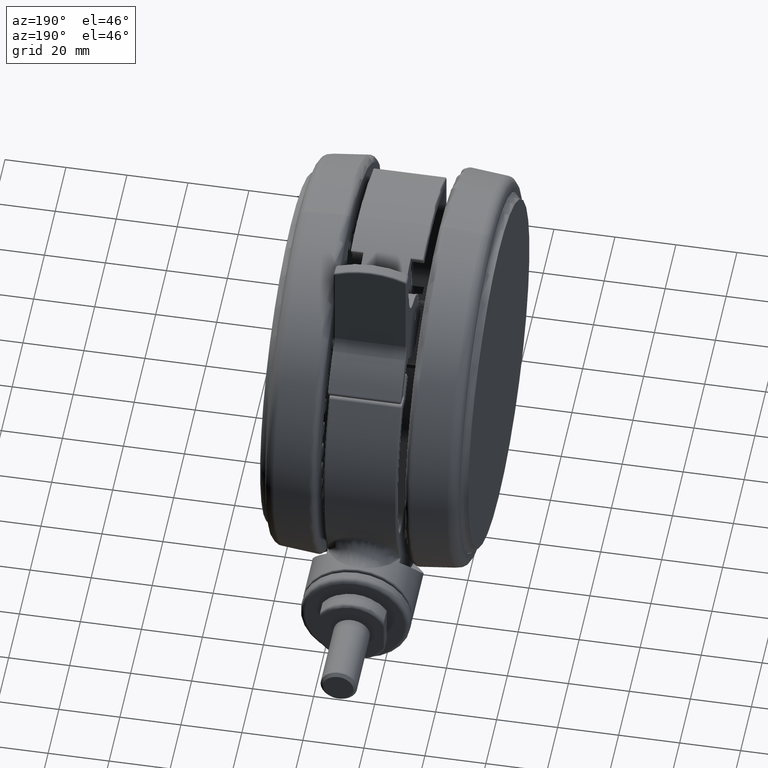
[diagram: clean part render]
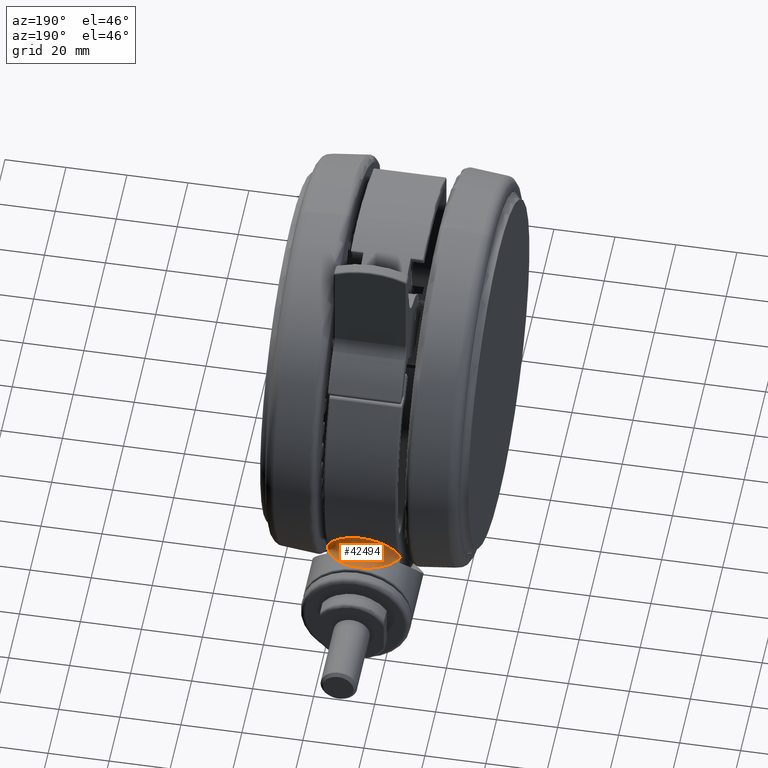
[diagram: same view with one face highlighted and labeled with its STEP entity id]
A machine part, auxiliary view. The second image highlights one B-rep face of the part: STEP entity #42494.
In plain terms, the highlighted face is a freeform B-spline surface patch.
Its self-contained STEP definition (entity closure, byte-faithful):
#152 = CARTESIAN_POINT ( 'NONE',  ( 28.37484902183078400, 58.67650871430763000, -41.08207356453573300 ) ) ;
#416 = CARTESIAN_POINT ( 'NONE',  ( 30.35290244265105000, 60.31074405743910200, -23.62693915276290500 ) ) ;
#709 = CARTESIAN_POINT ( 'NONE',  ( 27.03576459800769900, 67.74512608529970200, -32.79242233756730900 ) ) ;
#974 = CARTESIAN_POINT ( 'NONE',  ( 29.02308622630414800, 63.46725957536909800, -42.40795725200245400 ) ) ;
#1524 = EDGE_CURVE ( 'NONE', #57260, #76518, #49382, .T. ) ;
#1551 = ORIENTED_EDGE ( 'NONE', *, *, #48837, .F. ) ;
#2010 = B_SPLINE_CURVE_WITH_KNOTS ( 'NONE', 3,
 ( #28318, #34674, #41000, #3334, #47311, #9643, #53572, #15946, #59862, #22297, #66176, #28585, #72493, #34945, #78853, #41283, #3603, #47593, #9907, #53843, #16221, #60136, #22560, #66446, #28861, #72760, #35215, #79120, #41552, #3878 ),
 .UNSPECIFIED., .F., .F.,
 ( 4, 2, 2, 2, 2, 2, 2, 2, 2, 2, 2, 2, 2, 2, 4 ),
 ( -6.000000000594909100E-008, 0.0002769874312782856800, 0.0003462492890978491500, 0.0003808802180076152700, 0.0004155111469173813400, 0.0004241688791448154800, 0.0004328266113722496300, 0.0004501420758271282100, 0.0004847730047368786700, 0.0005540348625563733500, 0.0008310822938343904400, 0.001108129725112407600, 0.002216319450224488300, 0.003324509175336568800, 0.004432698900448650200 ),
 .UNSPECIFIED. ) ;
#3334 = CARTESIAN_POINT ( 'NONE',  ( 31.50526437049028100, 57.00313279052390700, -46.01676130109519400 ) ) ;
#3517 = CARTESIAN_POINT ( 'NONE',  ( 27.95437384687145200, 58.68178101843090400, -45.60001317750182900 ) ) ;
#3603 = CARTESIAN_POINT ( 'NONE',  ( 31.49106850129294300, 56.91912667314627300, -46.04103568428323000 ) ) ;
#3651 = CARTESIAN_POINT ( 'NONE',  ( 30.20954573881164900, 60.65250968105694100, -44.35936644053713000 ) ) ;
#3878 = CARTESIAN_POINT ( 'NONE',  ( 27.95437384687145200, 58.68178101843090400, -45.60001317750182900 ) ) ;
#3914 = CARTESIAN_POINT ( 'NONE',  ( 28.03396110006650600, 65.63342581418625300, -40.14199277852586800 ) ) ;
#4080 = CARTESIAN_POINT ( 'NONE',  ( 31.34985742047772600, 57.01552274683228900, -22.20864808847526800 ) ) ;
#4344 = CARTESIAN_POINT ( 'NONE',  ( 31.52401008762953400, 56.93889926856555000, -22.15932818830466600 ) ) ;
#4736 = CARTESIAN_POINT ( 'NONE',  ( 27.79232637209798500, 58.75890123488316200, -22.63798909152732700 ) ) ;
#4951 = CARTESIAN_POINT ( 'NONE',  ( 27.01018319708686000, 67.80143269593934000, -33.47461518382359500 ) ) ;
#4983 = CARTESIAN_POINT ( 'NONE',  ( 24.38946645385690500, 60.25139982984629200, -24.26384737465338800 ) ) ;
#5127 = CARTESIAN_POINT ( 'NONE',  ( 28.04856699668369700, 58.64207464974430200, -22.54200062864112700 ) ) ;
#5225 = CARTESIAN_POINT ( 'NONE',  ( 28.03460642237436000, 65.64118375539267400, -28.05645423191679600 ) ) ;
#5266 = CARTESIAN_POINT ( 'NONE',  ( 20.44288935957102300, 61.70165689065495900, -28.85910942607371200 ) ) ;
#5395 = CARTESIAN_POINT ( 'NONE',  ( 19.32467560108554800, 62.06123351660770000, -32.35680942344248500 ) ) ;
#5492 = CARTESIAN_POINT ( 'NONE',  ( 30.19978738053789900, 60.69217142143812500, -23.85454115236004200 ) ) ;
#5526 = CARTESIAN_POINT ( 'NONE',  ( 19.52615598186860500, 61.99781944255990900, -36.72101404127205600 ) ) ;
#5665 = CARTESIAN_POINT ( 'NONE',  ( 24.54658467532855000, 60.19142751347139600, -44.04975286024517800 ) ) ;
#5790 = CARTESIAN_POINT ( 'NONE',  ( 21.76791565473871500, 61.24679039606800800, -41.44564791617381200 ) ) ;
#5919 = CARTESIAN_POINT ( 'NONE',  ( 29.35598624239206700, 58.06972531539020800, -25.13851056328339000 ) ) ;
#6050 = CARTESIAN_POINT ( 'NONE',  ( 25.68911813592593100, 59.70913800842981800, -44.70101322627728300 ) ) ;
#6187 = CARTESIAN_POINT ( 'NONE',  ( 27.00023611895765200, 59.68437581392590400, -33.53456606252097300 ) ) ;
#6450 = CARTESIAN_POINT ( 'NONE',  ( 29.07747657931470500, 58.23523519274650100, -42.56144434127779900 ) ) ;
#6601 = ORIENTED_EDGE ( 'NONE', *, *, #1524, .F. ) ;
#6735 = CARTESIAN_POINT ( 'NONE',  ( 29.55780505888880000, 62.26540552550330400, -24.83595255570321900 ) ) ;
#6846 = CARTESIAN_POINT ( 'NONE',  ( 31.43219826552524800, 57.28085750291600000, -22.27143769147776800 ) ) ;
#7002 = CARTESIAN_POINT ( 'NONE',  ( 26.99967659762764800, 67.82343334390419900, -34.73940035556560700 ) ) ;
#7026 = ORIENTED_EDGE ( 'NONE', *, *, #51673, .T. ) ;
#7272 = CARTESIAN_POINT ( 'NONE',  ( 29.81333750569545100, 61.63642363757259800, -43.77433289821250600 ) ) ;
#9643 = CARTESIAN_POINT ( 'NONE',  ( 31.52044421260573200, 56.95089837210672800, -46.03606789044940200 ) ) ;
#9907 = CARTESIAN_POINT ( 'NONE',  ( 31.44581940852823700, 56.95140354814091000, -46.02358536667519200 ) ) ;
#9945 = CARTESIAN_POINT ( 'NONE',  ( 30.08527977950435400, 60.96256122219018200, -44.17742409406592000 ) ) ;
#10112 = CARTESIAN_POINT ( 'NONE',  ( 28.60024387827377600, 58.37445868326679500, -22.54542809405540600 ) ) ;
#10231 = CARTESIAN_POINT ( 'NONE',  ( 27.67922363963696600, 66.38295265178312800, -39.00725555591247200 ) ) ;
#10397 = CARTESIAN_POINT ( 'NONE',  ( 31.46218175859501200, 56.94005333528130600, -22.17043312605466500 ) ) ;
#10668 = CARTESIAN_POINT ( 'NONE',  ( 31.51172991225010400, 56.98082249274452900, -22.17511674096863700 ) ) ;
#11294 = CARTESIAN_POINT ( 'NONE',  ( 27.06614210760456300, 67.68111546272912400, -32.52515002337077700 ) ) ;
#11328 = CARTESIAN_POINT ( 'NONE',  ( 23.64653828361601000, 60.54676731015368300, -24.82376520894524300 ) ) ;
#11468 = CARTESIAN_POINT ( 'NONE',  ( 25.92156188280764800, 59.61221899404710500, -23.33790333951210600 ) ) ;
#11552 = CARTESIAN_POINT ( 'NONE',  ( 28.70160748628817200, 64.19818027021732100, -26.43834774374651500 ) ) ;
#11596 = CARTESIAN_POINT ( 'NONE',  ( 20.16148068567649100, 61.79430745747500700, -29.46952685547477200 ) ) ;
#11717 = CARTESIAN_POINT ( 'NONE',  ( 19.22495734915050000, 62.09187559654269300, -34.95253380560219400 ) ) ;
#11809 = CARTESIAN_POINT ( 'NONE',  ( 30.58570749890125700, 59.69324317277076400, -23.31719462978950500 ) ) ;
#11844 = CARTESIAN_POINT ( 'NONE',  ( 19.58523465069505700, 61.97918219874328100, -36.96602451009528100 ) ) ;
#11972 = CARTESIAN_POINT ( 'NONE',  ( 26.61330569935665100, 59.30726747500840200, -45.15510334813888700 ) ) ;
#12096 = CARTESIAN_POINT ( 'NONE',  ( 22.71460384025984800, 60.90410585044376300, -42.54105573440799000 ) ) ;
#12228 = CARTESIAN_POINT ( 'NONE',  ( 28.60301970038610600, 58.53025780087431000, -26.59560844218670200 ) ) ;
#12355 = CARTESIAN_POINT ( 'NONE',  ( 26.86298689317154500, 59.19017779428045100, -45.23463577216099200 ) ) ;
#12495 = CARTESIAN_POINT ( 'NONE',  ( 27.02480509660773200, 59.66330241640814300, -35.20670666757688800 ) ) ;
#12763 = CARTESIAN_POINT ( 'NONE',  ( 29.92510175715565500, 57.73865477359170500, -43.97768108397927700 ) ) ;
#13037 = CARTESIAN_POINT ( 'NONE',  ( 28.78217675208064800, 64.02111628831620700, -26.26961754746017500 ) ) ;
#13306 = CARTESIAN_POINT ( 'NONE',  ( 27.17226583903770300, 67.44888844335730500, -36.66640549148966200 ) ) ;
#13580 = CARTESIAN_POINT ( 'NONE',  ( 30.61067069014275100, 59.62766749688760400, -44.92192518474962500 ) ) ;
#15946 = CARTESIAN_POINT ( 'NONE',  ( 31.52945603639048500, 56.91967537076817500, -46.04806017941064100 ) ) ;
#16221 = CARTESIAN_POINT ( 'NONE',  ( 31.27420864871651700, 57.05970629056270100, -45.97265322691485800 ) ) ;
#16258 = CARTESIAN_POINT ( 'NONE',  ( 29.85912165285510200, 61.51874807567423200, -43.83786283791325600 ) ) ;
#16542 = CARTESIAN_POINT ( 'NONE',  ( 27.52664514371305100, 66.70294689402312800, -38.42490316752812900 ) ) ;
#16697 = CARTESIAN_POINT ( 'NONE',  ( 31.49824854489219200, 56.91378484136083000, -22.15594047201929600 ) ) ;
#16968 = CARTESIAN_POINT ( 'NONE',  ( 31.47589371153927800, 57.10779594841034900, -22.21995186116318500 ) ) ;
#17084 =( BOUNDED_SURFACE ( )  B_SPLINE_SURFACE ( 2, 3, ( 
 ( #61388, #30151, #80391, #42815, #5127, #49124, #11468, #55356, #17750, #61659, #24094, #67987, #30417, #74294, #36737, #80657, #43090, #5395, #49372, #11717, #55623, #18020, #61913, #24374, #68253, #30683, #74553, #36998, #80934, #43345, #5665, #49636, #11972, #55887, #18279, #62185, #24624, #68516 ),
 ( #30940, #74811, #37265, #81197, #43605, #5919, #49902, #12228, #56148, #18556, #62457, #24891, #68763, #31223, #75081, #37532, #81467, #43872, #6187, #50151, #12495, #56416, #18824, #62728, #25158, #69038, #31472, #75363, #37803, #152, #44145, #6450, #50423, #12763, #56686, #19101, #62980, #25432 ),
 ( #69302, #31751, #75627, #38076, #416, #44415, #6735, #50687, #13037, #56944, #19387, #63252, #25688, #69582, #32023, #75903, #38329, #709, #44677, #7002, #50963, #13306, #57220, #19649, #63534, #25954, #69841, #32293, #76171, #38620, #974, #44948, #7272, #51226, #13580, #57494, #19917, #63795 ) ),
 .UNSPECIFIED., .F., .F., .F. ) 
 B_SPLINE_SURFACE_WITH_KNOTS ( ( 3, 3 ),
 ( 4, 2, 2, 2, 2, 2, 2, 2, 2, 2, 2, 2, 2, 2, 2, 2, 2, 2, 4 ),
 ( 0.0000000000000000000, 1.000000000000000000 ),
 ( 5.204170427930419700E-018, 0.001667139977258240000, 0.003334279954516470100, 0.005001419931774699900, 0.006668559909032929800, 0.008335699886291170900, 0.01000283986354940000, 0.01083640985217850000, 0.01166997984080762000, 0.01333711981806586100, 0.01500425979532410100, 0.01667139977258235200, 0.01750496976121145000, 0.01833853974984054800, 0.02000567972709880000, 0.02167281970435699900, 0.02333995968161525100, 0.02500709965887349900, 0.02667423963613169800 ),
 .UNSPECIFIED. ) 
 GEOMETRIC_REPRESENTATION_ITEM ( )  RATIONAL_B_SPLINE_SURFACE ( (
 ( 1.000000000000000000, 1.000000000000000000, 1.000000000000000000, 1.000000000000000000, 1.000000000000000000, 1.000000000000000000, 1.000000000000000000, 1.000000000000000000, 1.000000000000000000, 1.000000000000000000, 1.000000000000000000, 1.000000000000000000, 1.000000000000000000, 1.000000000000000000, 1.000000000000000000, 1.000000000000000000, 1.000000000000000000, 1.000000000000000000, 1.000000000000000000, 1.000000000000000000, 1.000000000000000000, 1.000000000000000000, 1.000000000000000000, 1.000000000000000000, 1.000000000000000000, 1.000000000000000000, 1.000000000000000000, 1.000000000000000000, 1.000000000000000000, 1.000000000000000000, 1.000000000000000000, 1.000000000000000000, 1.000000000000000000, 1.000000000000000000, 1.000000000000000000, 1.000000000000000000, 1.000000000000000000, 1.000000000000000000),
 ( 0.5647258037007070200, 0.5655213132370029400, 0.5663961334035440000, 0.5683943253827109500, 0.5695198488730579500, 0.5720558501717690800, 0.5734669485592089900, 0.5765124468072179200, 0.5781475654898049500, 0.5814891669686500500, 0.5831882247234410100, 0.5863946730206040000, 0.5879006976314270500, 0.5898266888057840400, 0.5904132971751010500, 0.5914474913352560900, 0.5918951216355329300, 0.5929913961683669400, 0.5933905047672920500, 0.5933911489361780600, 0.5929928103426670400, 0.5915332551926340000, 0.5904725584566089500, 0.5885440730934089500, 0.5878456986427800200, 0.5863691916050219900, 0.5855910221176889900, 0.5831839304223470600, 0.5814835273327909600, 0.5781309389228360700, 0.5764800648591369400, 0.5734174611103860500, 0.5720131733970780200, 0.5694909597531649900, 0.5683740286654650500, 0.5663900183348520300, 0.5655207354603170000, 0.5647258037007070200),
 ( 1.000000000000000000, 1.000000000000000000, 1.000000000000000000, 1.000000000000000000, 1.000000000000000000, 1.000000000000000000, 1.000000000000000000, 1.000000000000000000, 1.000000000000000000, 1.000000000000000000, 1.000000000000000000, 1.000000000000000000, 1.000000000000000000, 1.000000000000000000, 1.000000000000000000, 1.000000000000000000, 1.000000000000000000, 1.000000000000000000, 1.000000000000000000, 1.000000000000000000, 1.000000000000000000, 1.000000000000000000, 1.000000000000000000, 1.000000000000000000, 1.000000000000000000, 1.000000000000000000, 1.000000000000000000, 1.000000000000000000, 1.000000000000000000, 1.000000000000000000, 1.000000000000000000, 1.000000000000000000, 1.000000000000000000, 1.000000000000000000, 1.000000000000000000, 1.000000000000000000, 1.000000000000000000, 1.000000000000000000) ) ) 
 REPRESENTATION_ITEM ( '' )  SURFACE ( )  );
#17357 = CARTESIAN_POINT ( 'NONE',  ( 27.44541606508240500, 58.92157019464794100, -22.74730794547513200 ) ) ;
#17583 = CARTESIAN_POINT ( 'NONE',  ( 27.13532945001938800, 67.53509397162231700, -31.89133214783808900 ) ) ;
#17623 = CARTESIAN_POINT ( 'NONE',  ( 22.69148590163013400, 60.91271055391931800, -25.67161477966031700 ) ) ;
#17750 = CARTESIAN_POINT ( 'NONE',  ( 23.90633399598365100, 60.44758034512310000, -24.58926750334611800 ) ) ;
#17845 = CARTESIAN_POINT ( 'NONE',  ( 29.31972042937714200, 62.81321208133081100, -25.25708756672131400 ) ) ;
#17881 = CARTESIAN_POINT ( 'NONE',  ( 19.70776321033785900, 61.94039336677740000, -30.74381804980476600 ) ) ;
#18020 = CARTESIAN_POINT ( 'NONE',  ( 19.69937146963100000, 61.94331010659080100, -37.49325383016314800 ) ) ;
#18107 = CARTESIAN_POINT ( 'NONE',  ( 31.19628043411741900, 58.00278629100984800, -22.54204867426955900 ) ) ;
#18144 = CARTESIAN_POINT ( 'NONE',  ( 19.91594499075797800, 61.87404756975024600, -38.09847191439211400 ) ) ;
#18279 = CARTESIAN_POINT ( 'NONE',  ( 28.76347434287255200, 58.29497095319050000, -45.82328586648098700 ) ) ;
#18416 = CARTESIAN_POINT ( 'NONE',  ( 23.43163832220241400, 60.62981915594368600, -43.17996524113615900 ) ) ;
#18556 = CARTESIAN_POINT ( 'NONE',  ( 27.99178168792100900, 58.93483555877440200, -28.12039462866916800 ) ) ;
#18677 = CARTESIAN_POINT ( 'NONE',  ( 27.29120315660091100, 58.99318165434271300, -45.38961938130581300 ) ) ;
#18824 = CARTESIAN_POINT ( 'NONE',  ( 27.19946060763662400, 59.52083255100706100, -36.86387200835051900 ) ) ;
#19101 = CARTESIAN_POINT ( 'NONE',  ( 30.88878454401773900, 57.19671797475412200, -45.29268016542361200 ) ) ;
#19387 = CARTESIAN_POINT ( 'NONE',  ( 28.09902508243279900, 65.50315243540769900, -27.87709333704909700 ) ) ;
#19649 = CARTESIAN_POINT ( 'NONE',  ( 27.47822675875420000, 66.80430924108270600, -38.23387646173016900 ) ) ;
#19917 = CARTESIAN_POINT ( 'NONE',  ( 31.35835011565145400, 57.52051041470670600, -45.84817176667233000 ) ) ;
#22297 = CARTESIAN_POINT ( 'NONE',  ( 31.53404641992640800, 56.89578551045166700, -46.05704411765148600 ) ) ;
#22560 = CARTESIAN_POINT ( 'NONE',  ( 31.03431647934001700, 57.19330640967580600, -45.92317138293000100 ) ) ;
#22604 = CARTESIAN_POINT ( 'NONE',  ( 29.43772748812792600, 62.51383590742530300, -43.14870040106477900 ) ) ;
#22898 = CARTESIAN_POINT ( 'NONE',  ( 27.42352200947122400, 66.91895442888927900, -37.98496037588779500 ) ) ;
#23053 = CARTESIAN_POINT ( 'NONE',  ( 31.51612208338771400, 56.90068055733784300, -22.14824396819805900 ) ) ;
#23326 = CARTESIAN_POINT ( 'NONE',  ( 31.43219826552524800, 57.28085750291600000, -22.27143769147776800 ) ) ;
#23689 = CARTESIAN_POINT ( 'NONE',  ( 27.36336916197056000, 58.95970111128236400, -22.77472115942863700 ) ) ;
#23927 = CARTESIAN_POINT ( 'NONE',  ( 27.24451530478051400, 67.30619891527301500, -31.11424504980669400 ) ) ;
#23970 = CARTESIAN_POINT ( 'NONE',  ( 21.74756569991431800, 61.25401864652220500, -26.76867654488429300 ) ) ;
#24094 = CARTESIAN_POINT ( 'NONE',  ( 22.13230254501455000, 61.11824206530830100, -26.25733972223187600 ) ) ;
#24194 = CARTESIAN_POINT ( 'NONE',  ( 29.70007213175555400, 61.92219475337594000, -24.61455989430682900 ) ) ;
#24230 = CARTESIAN_POINT ( 'NONE',  ( 19.46034929420567700, 62.01853465009203600, -31.74024620383640600 ) ) ;
#24374 = CARTESIAN_POINT ( 'NONE',  ( 20.51447643478405400, 61.67813037906010000, -39.47599626259969300 ) ) ;
#24493 = CARTESIAN_POINT ( 'NONE',  ( 20.45259772501639300, 61.69856751788859100, -39.34500890495279200 ) ) ;
#24624 = CARTESIAN_POINT ( 'NONE',  ( 30.89669569522654800, 57.19276047151920000, -46.09815369055281300 ) ) ;
#24752 = CARTESIAN_POINT ( 'NONE',  ( 24.03853599999608200, 60.39264876353387700, -43.67055891784971100 ) ) ;
#24891 = CARTESIAN_POINT ( 'NONE',  ( 27.52817486493948700, 59.26864450968823700, -29.68470853590854500 ) ) ;
#25021 = CARTESIAN_POINT ( 'NONE',  ( 27.62053252951432800, 58.83998178103006900, -45.50066272967117700 ) ) ;
#25158 = CARTESIAN_POINT ( 'NONE',  ( 27.40544459973334300, 59.36131503699255800, -37.95644483310758900 ) ) ;
#25432 = CARTESIAN_POINT ( 'NONE',  ( 31.58359213500123300, 56.81088546968690200, -46.10000000000005800 ) ) ;
#25688 = CARTESIAN_POINT ( 'NONE',  ( 27.55333290124155000, 66.65922100380029700, -29.62645166784309200 ) ) ;
#25692 = ORIENTED_EDGE ( 'NONE', *, *, #30570, .T. ) ;
#25954 = CARTESIAN_POINT ( 'NONE',  ( 27.71888112723694800, 66.30018600261310300, -39.14586395928406400 ) ) ;
#27880 = B_SPLINE_CURVE_WITH_KNOTS ( 'NONE', 3,
 ( #47356, #28627, #72534, #34983, #78892, #41325, #3651, #47629, #9945, #53890, #16258, #60181, #22604, #66494, #28904, #72798, #35257, #79160, #41595, #3914, #47900, #10231, #54152, #16542, #60443, #22898, #66759, #29191, #73066 ),
 .UNSPECIFIED., .F., .F.,
 ( 4, 2, 2, 2, 2, 1, 2, 2, 2, 2, 2, 2, 2, 2, 4 ),
 ( 0.01307860757773913900, 0.07390641945431723800, 0.1043203253926063700, 0.1195272783617509200, 0.1271307548463232500, 0.1347342313308955700, 0.1651481372691866200, 0.1955620432074776600, 0.2259759491457687100, 0.2563898550840597600, 0.3172176669606410800, 0.3476315728989313700, 0.3628385258680759700, 0.3780454788372206200, 0.4997011025903751500 ),
 .UNSPECIFIED. ) ;
#28318 = CARTESIAN_POINT ( 'NONE',  ( 31.43219784115480000, 57.28045721444460300, -45.92856248409525200 ) ) ;
#28585 = CARTESIAN_POINT ( 'NONE',  ( 31.52702510317321900, 56.89361499310098200, -46.05630478327834300 ) ) ;
#28627 = CARTESIAN_POINT ( 'NONE',  ( 31.19597445758021700, 58.00234910369782400, -45.65760042550589800 ) ) ;
#28861 = CARTESIAN_POINT ( 'NONE',  ( 30.29631412792090800, 57.57090631435701800, -45.81754956179359800 ) ) ;
#28904 = CARTESIAN_POINT ( 'NONE',  ( 29.05458055190173600, 63.39207030824388100, -42.45548159004599100 ) ) ;
#29078 = CARTESIAN_POINT ( 'NONE',  ( 30.28500752905423000, 57.57685255856760900, -22.38308119018412900 ) ) ;
#29191 = CARTESIAN_POINT ( 'NONE',  ( 26.99999999997561400, 67.82218194047797500, -35.32657548269956700 ) ) ;
#29343 = CARTESIAN_POINT ( 'NONE',  ( 31.52540697989360300, 56.89462423489817400, -22.14435117520629200 ) ) ;
#29966 = CARTESIAN_POINT ( 'NONE',  ( 27.00201533165522200, 67.81909666149800800, -33.78829076255852500 ) ) ;
#30005 = CARTESIAN_POINT ( 'NONE',  ( 27.25667273886927300, 59.00915434209894500, -22.81098914732393400 ) ) ;
#30151 = CARTESIAN_POINT ( 'NONE',  ( 30.89677763924330000, 57.19271491534839700, -22.10175125834292600 ) ) ;
#30248 = CARTESIAN_POINT ( 'NONE',  ( 27.42779434949851900, 66.92248144829613900, -30.19591483057911700 ) ) ;
#30286 = CARTESIAN_POINT ( 'NONE',  ( 21.45418476367681700, 61.35738483624606900, -27.16199617994645600 ) ) ;
#30417 = CARTESIAN_POINT ( 'NONE',  ( 20.70238994750485200, 61.61617552377000400, -28.29856950290595600 ) ) ;
#30510 = CARTESIAN_POINT ( 'NONE',  ( 29.99329104215049900, 61.20788244075375700, -24.16006867614644800 ) ) ;
#30541 = CARTESIAN_POINT ( 'NONE',  ( 19.22436531436573000, 62.09205890737770500, -33.43434025363112000 ) ) ;
#30570 = EDGE_CURVE ( 'NONE', #45740, #76518, #68386, .T. ) ;
#30683 = CARTESIAN_POINT ( 'NONE',  ( 21.14585279646474800, 61.46466505758910200, -40.58104261071260800 ) ) ;
#30819 = CARTESIAN_POINT ( 'NONE',  ( 20.92787093554782300, 61.53904134677835500, -40.22387728630288000 ) ) ;
#30940 = CARTESIAN_POINT ( 'NONE',  ( 31.58359213500123300, 56.81088546968690200, -22.10000000000007600 ) ) ;
#31085 = CARTESIAN_POINT ( 'NONE',  ( 24.81591559312336100, 60.07653874074011900, -44.19546713594325400 ) ) ;
#31223 = CARTESIAN_POINT ( 'NONE',  ( 27.25461895886604000, 59.47923668865434600, -31.03156326798979200 ) ) ;
#31341 = CARTESIAN_POINT ( 'NONE',  ( 27.95437384687145200, 58.68178101843090400, -45.60001317750182900 ) ) ;
#31472 = CARTESIAN_POINT ( 'NONE',  ( 27.59711526970946600, 59.21759488926223000, -38.76066206714875800 ) ) ;
#31751 = CARTESIAN_POINT ( 'NONE',  ( 31.35843477451469900, 57.52046430611630300, -22.35173358184122700 ) ) ;
#32023 = CARTESIAN_POINT ( 'NONE',  ( 27.29019217615704900, 67.21075627637419800, -30.86486151949601400 ) ) ;
#32293 = CARTESIAN_POINT ( 'NONE',  ( 28.09400730688095000, 65.50544313662851400, -40.30955521367830800 ) ) ;
#32962 = FACE_OUTER_BOUND ( 'NONE', #41152, .T. ) ;
#34674 = CARTESIAN_POINT ( 'NONE',  ( 31.45371904588189300, 57.19405394919948500, -45.95325033781666900 ) ) ;
#34945 = CARTESIAN_POINT ( 'NONE',  ( 31.51769754075592900, 56.89954586429691100, -46.05242432687200000 ) ) ;
#34983 = CARTESIAN_POINT ( 'NONE',  ( 30.58251653568941500, 59.69282717029901200, -44.87856006597162000 ) ) ;
#35215 = CARTESIAN_POINT ( 'NONE',  ( 29.29508945463068800, 58.05014629201497900, -45.71561518309143000 ) ) ;
#35257 = CARTESIAN_POINT ( 'NONE',  ( 28.69495899091717600, 64.19678313742727500, -41.73013351485461400 ) ) ;
#35418 = CARTESIAN_POINT ( 'NONE',  ( 31.02902526023653400, 57.19626828357366600, -22.27755952902918000 ) ) ;
#35675 = CARTESIAN_POINT ( 'NONE',  ( 31.53376723770534400, 56.89381013920256400, -22.14233076713333400 ) ) ;
#36332 = CARTESIAN_POINT ( 'NONE',  ( 26.53638836899736500, 59.33728492795938100, -23.08332653722088100 ) ) ;
#36560 = CARTESIAN_POINT ( 'NONE',  ( 27.53010713784997800, 66.70778380839733800, -29.76120331008695200 ) ) ;
#36599 = CARTESIAN_POINT ( 'NONE',  ( 20.91104773475947800, 61.54475527762041800, -27.98655297348422600 ) ) ;
#36737 = CARTESIAN_POINT ( 'NONE',  ( 20.00573902027575100, 61.84490005385639900, -29.85012463052707300 ) ) ;
#36829 = CARTESIAN_POINT ( 'NONE',  ( 30.07544309393808400, 61.00385755500816700, -24.03727319381285500 ) ) ;
#36866 = CARTESIAN_POINT ( 'NONE',  ( 19.28682181034139700, 62.07281407466353300, -35.46171010078335700 ) ) ;
#36998 = CARTESIAN_POINT ( 'NONE',  ( 22.12641051849064800, 61.12037978948299600, -41.92588773839015900 ) ) ;
#37135 = CARTESIAN_POINT ( 'NONE',  ( 21.37891699338514000, 61.38364179587569700, -40.91772146270345400 ) ) ;
#37265 = CARTESIAN_POINT ( 'NONE',  ( 30.88968512757510600, 57.19622361670062100, -22.90629961748919600 ) ) ;
#37392 = CARTESIAN_POINT ( 'NONE',  ( 25.15169236763343400, 59.93661424670376900, -44.39846952754439300 ) ) ;
#37532 = CARTESIAN_POINT ( 'NONE',  ( 27.13448803288718000, 59.57458440538791700, -31.85725148658658800 ) ) ;
#37738 = B_SPLINE_CURVE_WITH_KNOTS ( 'NONE', 3,
 ( #48721, #4736, #54958, #17357, #61254, #23689, #67596, #30005, #73884, #36332, #80263, #42684, #4983, #48991, #11328, #55218, #17623, #61525, #23970, #67842, #30286, #74149, #36599, #80522, #42951, #5266, #49241, #11596, #55485, #17881, #61789, #24230, #68120, #30541, #74433, #36866, #80794, #43216, #5526, #49509, #11844, #55756, #18144, #62044, #24493, #68383, #30819, #74677, #37135, #81054, #43474, #5790, #49755, #12096, #56009, #18416, #62311, #24752, #68635, #31085, #74953, #37392, #81332, #43732, #6050, #50018, #12355, #56278, #18677, #62594, #25021, #68890, #31341 ),
 .UNSPECIFIED., .F., .F.,
 ( 4, 1, 1, 2, 2, 1, 2, 2, 2, 2, 2, 2, 1, 2, 2, 2, 1, 2, 2, 2, 2, 2, 2, 1, 1, 2, 2, 2, 2, 2, 2, 2, 1, 2, 2, 2, 1, 1, 2, 2, 1, 4 ),
 ( 0.1067419510894592100, 0.1190486621802158000, 0.1221253399529049600, 0.1236636788392495700, 0.1252020177255941900, 0.1313553732709725800, 0.1559687954524863800, 0.2051956398155139700, 0.2298090619970276100, 0.2544224841785412400, 0.3036493285415684500, 0.3159560396323252100, 0.3282627507230819200, 0.3528761729045951600, 0.3651828839953517600, 0.3774895950861083000, 0.4021030172676214900, 0.4267164394491346800, 0.4513298616306480900, 0.5005567059936749700, 0.5497835503567017900, 0.5620902614474584400, 0.5682436169928367600, 0.5743969725382150900, 0.5990103947197285000, 0.6236238169012419100, 0.6482372390827554300, 0.6728506612642688500, 0.6851573723550256100, 0.6974640834457823700, 0.7466909278088093000, 0.7589976388995658400, 0.7713043499903226000, 0.7959177721718361200, 0.8082244832625930000, 0.8143778388079716500, 0.8205311943533503100, 0.8451446165348656100, 0.8697580387163808000, 0.8759113942617594600, 0.8820647498071380000, 0.8943714608978949900 ),
 .UNSPECIFIED. ) ;
#37803 = CARTESIAN_POINT ( 'NONE',  ( 27.98780977991378200, 58.93692825212789200, -40.06776963965891300 ) ) ;
#38076 = CARTESIAN_POINT ( 'NONE',  ( 30.61452745660615100, 59.62559730028689800, -23.27304230140192900 ) ) ;
#38329 = CARTESIAN_POINT ( 'NONE',  ( 27.14176064071234900, 67.52143061359400600, -31.82202607197505300 ) ) ;
#38620 = CARTESIAN_POINT ( 'NONE',  ( 28.77336392755844900, 64.02533187354509900, -41.91187857922582100 ) ) ;
#39463 = VERTEX_POINT ( 'NONE', #3517 ) ;
#41000 = CARTESIAN_POINT ( 'NONE',  ( 31.47569455010024300, 57.10837157458505700, -45.97981036435459900 ) ) ;
#41152 = EDGE_LOOP ( 'NONE', ( #56930, #7026, #1551, #25692, #6601 ) ) ;
#41283 = CARTESIAN_POINT ( 'NONE',  ( 31.49992790338575300, 56.91252785539710100, -46.04474835207480500 ) ) ;
#41325 = CARTESIAN_POINT ( 'NONE',  ( 30.27179689030181100, 60.49523927873468000, -44.44850423538401400 ) ) ;
#41552 = CARTESIAN_POINT ( 'NONE',  ( 28.28721646168580900, 58.52319623386214400, -45.62720399135483300 ) ) ;
#41595 = CARTESIAN_POINT ( 'NONE',  ( 28.24001786564871000, 65.19293938351768200, -40.69061770637229400 ) ) ;
#41751 = CARTESIAN_POINT ( 'NONE',  ( 31.27053688249213800, 57.06190367887325700, -22.22813673743640100 ) ) ;
#42024 = CARTESIAN_POINT ( 'NONE',  ( 31.52995531496177200, 56.91795101302660200, -22.15124700725291300 ) ) ;
#42494 = ADVANCED_FACE ( 'NONE', ( #32962 ), #17084, .T. ) ;
#42644 = CARTESIAN_POINT ( 'NONE',  ( 27.00000000232621400, 67.82329571296227800, -34.09999999964988100 ) ) ;
#42684 = CARTESIAN_POINT ( 'NONE',  ( 25.16104298967593400, 59.93522284192272300, -23.75721250411366700 ) ) ;
#42815 = CARTESIAN_POINT ( 'NONE',  ( 28.76753570661875200, 58.29294286455359500, -22.37130675191575000 ) ) ;
#42910 = CARTESIAN_POINT ( 'NONE',  ( 27.76477530957808800, 66.21361483177416600, -28.90054944784214900 ) ) ;
#42951 = CARTESIAN_POINT ( 'NONE',  ( 20.59217860871009600, 61.65199403560887200, -28.56394961350077800 ) ) ;
#43090 = CARTESIAN_POINT ( 'NONE',  ( 19.61009313618579600, 61.97139820403160100, -31.08452832265233900 ) ) ;
#43175 = CARTESIAN_POINT ( 'NONE',  ( 30.12258544996889100, 60.88595072839852700, -23.96771043773805200 ) ) ;
#43216 = CARTESIAN_POINT ( 'NONE',  ( 19.47014680937347500, 62.01544094387734400, -36.46947112115134400 ) ) ;
#43345 = CARTESIAN_POINT ( 'NONE',  ( 23.89621856686725100, 60.45155712245269800, -43.58823716197662900 ) ) ;
#43474 = CARTESIAN_POINT ( 'NONE',  ( 21.67015956479912500, 61.28144073425520600, -41.31869377111444700 ) ) ;
#43605 = CARTESIAN_POINT ( 'NONE',  ( 29.93041734676025100, 57.73585364186518400, -24.21443024956581900 ) ) ;
#43732 = CARTESIAN_POINT ( 'NONE',  ( 25.35360681897378400, 59.85148194636899900, -44.51417581782972400 ) ) ;
#43872 = CARTESIAN_POINT ( 'NONE',  ( 27.02574240849045900, 59.66279344758285000, -32.97481348149622700 ) ) ;
#44145 = CARTESIAN_POINT ( 'NONE',  ( 28.59225683084487500, 58.53586435000271100, -41.58037894574721300 ) ) ;
#44415 = CARTESIAN_POINT ( 'NONE',  ( 29.82451262923434900, 61.63067420691650300, -24.40840294769945000 ) ) ;
#44677 = CARTESIAN_POINT ( 'NONE',  ( 27.00032794277434800, 67.82316444415299400, -33.44251902155095700 ) ) ;
#44948 = CARTESIAN_POINT ( 'NONE',  ( 29.54250856171339700, 62.27311969321839800, -43.33850019583857000 ) ) ;
#45740 = VERTEX_POINT ( 'NONE', #48915 ) ;
#47311 = CARTESIAN_POINT ( 'NONE',  ( 31.51130209831909200, 56.98218430583675300, -46.02434798752607000 ) ) ;
#47356 = CARTESIAN_POINT ( 'NONE',  ( 31.43219784115480000, 57.28045721444460300, -45.92856248409525200 ) ) ;
#47593 = CARTESIAN_POINT ( 'NONE',  ( 31.46415165700792500, 56.93864805557887400, -46.03027671637308100 ) ) ;
#47629 = CARTESIAN_POINT ( 'NONE',  ( 30.11619238796525600, 60.88573860173628600, -44.22300870400290100 ) ) ;
#47900 = CARTESIAN_POINT ( 'NONE',  ( 27.76312691928668000, 66.20652477769560600, -39.29405858378920900 ) ) ;
#48065 = CARTESIAN_POINT ( 'NONE',  ( 31.44369861080873500, 56.95287241042996100, -22.17712979686919200 ) ) ;
#48329 = CARTESIAN_POINT ( 'NONE',  ( 31.52092241349558300, 56.94935872453460500, -22.16331897240673100 ) ) ;
#48721 = CARTESIAN_POINT ( 'NONE',  ( 27.92590306755449700, 58.69533635111779500, -22.59998678528584600 ) ) ;
#48837 = EDGE_CURVE ( 'NONE', #45740, #39463, #37738, .T. ) ;
#48915 = CARTESIAN_POINT ( 'NONE',  ( 27.92590306755449700, 58.69533635111779500, -22.59998678528584600 ) ) ;
#48950 = CARTESIAN_POINT ( 'NONE',  ( 27.02863694349037300, 67.76147168029452000, -33.00231471585350100 ) ) ;
#48991 = CARTESIAN_POINT ( 'NONE',  ( 24.13795755566093200, 60.35253772253094000, -24.44338225758372500 ) ) ;
#49124 = CARTESIAN_POINT ( 'NONE',  ( 26.62555077580350000, 59.30172911204820000, -23.02527136428858500 ) ) ;
#49208 = CARTESIAN_POINT ( 'NONE',  ( 28.24084609274394000, 65.19993477132256000, -27.50687675379294100 ) ) ;
#49241 = CARTESIAN_POINT ( 'NONE',  ( 20.37157209290337400, 61.72523377728598600, -29.00752762653992900 ) ) ;
#49372 = CARTESIAN_POINT ( 'NONE',  ( 19.22575241847635400, 62.09162942069269800, -33.22335869721985800 ) ) ;
#49382 = B_SPLINE_CURVE_WITH_KNOTS ( 'NONE', 3,
 ( #42644, #80219, #29966, #4951, #48950, #11294, #55181, #17583, #61488, #23927, #67809, #30248, #74115, #36560, #80486, #42910, #5225, #49208, #11552, #55446, #17845, #61748, #24194, #68079, #30510, #74389, #36829, #80751, #43175, #5492, #49467, #11809, #55718, #18107, #62006 ),
 .UNSPECIFIED., .F., .F.,
 ( 4, 2, 1, 2, 2, 1, 2, 2, 1, 2, 2, 2, 2, 2, 2, 2, 1, 1, 2, 4 ),
 ( 0.4997011025903751500, 0.5149259359329873000, 0.5301507692755994500, 0.5606004359608236500, 0.5758252693034359200, 0.5910501026460480700, 0.6214997693312724900, 0.6367246026738845300, 0.6519494360164965800, 0.6823991027017205500, 0.7432984360721679500, 0.8041977694426154500, 0.8346474361278395400, 0.8650971028130631800, 0.8727095194843692600, 0.8765157278200219600, 0.8803219361556746700, 0.8955467694982841600, 0.9259964361835029100, 0.9868957695539399800 ),
 .UNSPECIFIED. ) ;
#49467 = CARTESIAN_POINT ( 'NONE',  ( 30.40064838187086200, 60.18108848950743100, -23.56724930814147700 ) ) ;
#49509 = CARTESIAN_POINT ( 'NONE',  ( 19.54512131529279600, 61.99184361767516500, -36.80211477293095600 ) ) ;
#49636 = CARTESIAN_POINT ( 'NONE',  ( 25.90455254088765000, 59.61960183520970000, -44.83244844785897200 ) ) ;
#49755 = CARTESIAN_POINT ( 'NONE',  ( 22.27253549177076800, 61.06650419923458600, -42.07451242591226800 ) ) ;
#49902 = CARTESIAN_POINT ( 'NONE',  ( 29.08996814728688900, 58.22873585410936000, -25.61475939994789300 ) ) ;
#50018 = CARTESIAN_POINT ( 'NONE',  ( 26.30316968427618500, 59.44255489925022600, -45.00662855525664000 ) ) ;
#50151 = CARTESIAN_POINT ( 'NONE',  ( 26.99976715038620900, 59.68463011624839300, -34.64988399648471100 ) ) ;
#50423 = CARTESIAN_POINT ( 'NONE',  ( 29.34658207648596900, 58.07463170998614300, -43.04517112517834900 ) ) ;
#50687 = CARTESIAN_POINT ( 'NONE',  ( 29.03681675847190000, 63.46056091371880800, -25.76568896387594500 ) ) ;
#50963 = CARTESIAN_POINT ( 'NONE',  ( 27.03446389449034700, 67.74565990993319500, -35.38610065792732900 ) ) ;
#51226 = CARTESIAN_POINT ( 'NONE',  ( 30.34691721183070000, 60.31392128795259600, -44.56492233819294300 ) ) ;
#51673 = EDGE_CURVE ( 'NONE', #56507, #39463, #2010, .T. ) ;
#53572 = CARTESIAN_POINT ( 'NONE',  ( 31.52351462578379000, 56.94049643063039000, -46.04003210049131000 ) ) ;
#53843 = CARTESIAN_POINT ( 'NONE',  ( 31.35262377338743500, 57.01378885507819700, -45.99205832888490900 ) ) ;
#53890 = CARTESIAN_POINT ( 'NONE',  ( 30.02072685747827000, 61.12200835616035700, -44.08121895106248900 ) ) ;
#54152 = CARTESIAN_POINT ( 'NONE',  ( 27.56352081567373700, 66.62568679229104900, -38.57121978421365300 ) ) ;
#54309 = CARTESIAN_POINT ( 'NONE',  ( 31.48931637179158800, 56.92041872092237000, -22.15965825582302500 ) ) ;
#54576 = CARTESIAN_POINT ( 'NONE',  ( 31.50565104521010800, 57.00190101306954200, -22.18275613552467700 ) ) ;
#54958 = CARTESIAN_POINT ( 'NONE',  ( 27.62642517994137100, 58.83713431076597500, -22.68826808428833200 ) ) ;
#55181 = CARTESIAN_POINT ( 'NONE',  ( 27.11691472586480600, 67.57382911055003700, -32.04546503646464100 ) ) ;
#55218 = CARTESIAN_POINT ( 'NONE',  ( 23.40862095568921600, 60.63911217040720900, -25.02255636260865000 ) ) ;
#55356 = CARTESIAN_POINT ( 'NONE',  ( 24.56217640953624900, 60.18507716922259500, -24.11871903752540900 ) ) ;
#55446 = CARTESIAN_POINT ( 'NONE',  ( 28.94463039377171400, 63.66525663065665700, -25.94535851986655600 ) ) ;
#55485 = CARTESIAN_POINT ( 'NONE',  ( 19.90790737072405400, 61.87663068302234100, -30.09609914001382700 ) ) ;
#55623 = CARTESIAN_POINT ( 'NONE',  ( 19.32308470046639900, 62.06172170443220200, -35.81457740243978800 ) ) ;
#55718 = CARTESIAN_POINT ( 'NONE',  ( 30.95374303908645100, 58.69611726397341300, -22.83653937618285900 ) ) ;
#55756 = CARTESIAN_POINT ( 'NONE',  ( 19.68975077168373400, 61.94613803237425000, -37.37453438217104900 ) ) ;
#55887 = CARTESIAN_POINT ( 'NONE',  ( 28.04218278834235200, 58.64517030467890600, -45.64911281560205200 ) ) ;
#56009 = CARTESIAN_POINT ( 'NONE',  ( 23.31383103802730600, 60.67521521096313100, -43.07854949590887400 ) ) ;
#56148 = CARTESIAN_POINT ( 'NONE',  ( 28.38163065454567400, 58.67296370866665000, -27.10125296800147900 ) ) ;
#56278 = CARTESIAN_POINT ( 'NONE',  ( 27.21710659369537700, 59.02741044994478900, -45.36349939107010000 ) ) ;
#56416 = CARTESIAN_POINT ( 'NONE',  ( 27.12456858463812300, 59.58146140304678800, -36.31313104047524100 ) ) ;
#56507 = VERTEX_POINT ( 'NONE', #64298 ) ;
#56686 = CARTESIAN_POINT ( 'NONE',  ( 30.23529320846996900, 57.56286153218964300, -44.42783727009469200 ) ) ;
#56930 = ORIENTED_EDGE ( 'NONE', *, *, #79846, .F. ) ;
#56944 = CARTESIAN_POINT ( 'NONE',  ( 28.31413501433615200, 65.04195720301820000, -27.32396945594294000 ) ) ;
#57220 = CARTESIAN_POINT ( 'NONE',  ( 27.27528077155875200, 67.22983686530649500, -37.30003386651768000 ) ) ;
#57260 = VERTEX_POINT ( 'NONE', #61157 ) ;
#57494 = CARTESIAN_POINT ( 'NONE',  ( 31.11641256930920100, 58.23095354850170200, -45.56354494675184700 ) ) ;
#59862 = CARTESIAN_POINT ( 'NONE',  ( 31.53329815651673200, 56.90947700546660600, -46.05225917396779100 ) ) ;
#60136 = CARTESIAN_POINT ( 'NONE',  ( 31.11515132542974300, 57.14961233858480900, -45.93807750063822200 ) ) ;
#60181 = CARTESIAN_POINT ( 'NONE',  ( 29.69672383438819500, 61.90609721813013500, -43.58013941253064900 ) ) ;
#60331 = CARTESIAN_POINT ( 'NONE',  ( 27.92590306755449700, 58.69533635111779500, -22.59998678528584600 ) ) ;
#60443 = CARTESIAN_POINT ( 'NONE',  ( 27.45637483020248100, 66.85016454061285200, -38.13040112691881900 ) ) ;
#60600 = CARTESIAN_POINT ( 'NONE',  ( 31.51166426026054500, 56.90395921069897200, -22.15019292307194800 ) ) ;
#60867 = CARTESIAN_POINT ( 'NONE',  ( 31.45397907605043000, 57.19330797630784200, -22.24645226956632600 ) ) ;
#61157 = CARTESIAN_POINT ( 'NONE',  ( 27.00000000232621400, 67.82329571296227800, -34.09999999964988100 ) ) ;
#61254 = CARTESIAN_POINT ( 'NONE',  ( 27.39617166329022500, 58.94446628159057900, -22.76371515054742600 ) ) ;
#61388 = CARTESIAN_POINT ( 'NONE',  ( 31.58359213500125400, 56.81088546968690200, -22.10000000000006900 ) ) ;
#61488 = CARTESIAN_POINT ( 'NONE',  ( 27.17659001136983600, 67.44849246723522600, -31.57993573143129500 ) ) ;
#61525 = CARTESIAN_POINT ( 'NONE',  ( 22.25067191259084300, 61.07446460647479100, -26.13959871664137000 ) ) ;
#61659 = CARTESIAN_POINT ( 'NONE',  ( 22.69232652957014600, 60.91371841697900200, -25.65701652162717000 ) ) ;
#61748 = CARTESIAN_POINT ( 'NONE',  ( 29.44483138160192600, 62.52410021665792800, -25.03920003391647200 ) ) ;
#61789 = CARTESIAN_POINT ( 'NONE',  ( 19.53446099107078700, 61.99526671427586400, -31.40211027222164500 ) ) ;
#61913 = CARTESIAN_POINT ( 'NONE',  ( 19.97752858790445200, 61.85499489384879700, -38.30988555232048000 ) ) ;
#62006 = CARTESIAN_POINT ( 'NONE',  ( 31.43219826552524800, 57.28085750291600000, -22.27143769147776800 ) ) ;
#62044 = CARTESIAN_POINT ( 'NONE',  ( 20.17088575764760300, 61.79124011712932000, -38.72578671634456500 ) ) ;
#62185 = CARTESIAN_POINT ( 'NONE',  ( 30.19070856520090000, 57.56876072174489400, -46.04777176340936500 ) ) ;
#62311 = CARTESIAN_POINT ( 'NONE',  ( 23.67213790501916600, 60.53632407365591200, -43.37910290245623900 ) ) ;
#62457 = CARTESIAN_POINT ( 'NONE',  ( 27.82156660061021800, 59.05482984075989400, -28.63639633424744300 ) ) ;
#62594 = CARTESIAN_POINT ( 'NONE',  ( 27.42267506145585200, 58.93218258227798100, -45.43470148881331000 ) ) ;
#62728 = CARTESIAN_POINT ( 'NONE',  ( 27.34911589242807000, 59.40447472434172500, -37.68356449233051100 ) ) ;
#62980 = CARTESIAN_POINT ( 'NONE',  ( 31.23183832186144600, 57.00644040333360600, -45.70672728296405300 ) ) ;
#63252 = CARTESIAN_POINT ( 'NONE',  ( 27.71862756750670100, 66.31175503621101100, -29.02834471306513800 ) ) ;
#63534 = CARTESIAN_POINT ( 'NONE',  ( 27.55402111806294800, 66.64625196228979600, -38.54248055045558600 ) ) ;
#63795 = CARTESIAN_POINT ( 'NONE',  ( 31.58359213500125400, 56.81088546968690200, -46.10000000000007200 ) ) ;
#64298 = CARTESIAN_POINT ( 'NONE',  ( 31.43219784115480000, 57.28045721444460300, -45.92856248409525200 ) ) ;
#66176 = CARTESIAN_POINT ( 'NONE',  ( 31.53254851817104100, 56.89233104787297900, -46.05789376378952200 ) ) ;
#66446 = CARTESIAN_POINT ( 'NONE',  ( 30.62819185518034400, 57.40826852280439900, -45.85491294321128900 ) ) ;
#66494 = CARTESIAN_POINT ( 'NONE',  ( 29.30792035097637100, 62.81362024547144800, -42.92208083538607600 ) ) ;
#66656 = CARTESIAN_POINT ( 'NONE',  ( 29.27838663486402700, 58.06246726459874500, -22.48858511848055700 ) ) ;
#66759 = CARTESIAN_POINT ( 'NONE',  ( 27.12583043080887500, 67.54388024938846500, -36.57906944889984400 ) ) ;
#66933 = CARTESIAN_POINT ( 'NONE',  ( 31.52306849014732000, 56.89613251212048100, -22.14533324549611100 ) ) ;
#67596 = CARTESIAN_POINT ( 'NONE',  ( 27.34814487594782800, 58.96676503255361000, -22.77986088566700600 ) ) ;
#67809 = CARTESIAN_POINT ( 'NONE',  ( 27.33033885624493600, 67.12673147716617400, -30.65322690051891600 ) ) ;
#67842 = CARTESIAN_POINT ( 'NONE',  ( 21.64952585980088200, 61.28873263384547000, -26.89637461909766400 ) ) ;
#67987 = CARTESIAN_POINT ( 'NONE',  ( 21.13732615736455100, 61.46943770700099200, -27.57812462076695700 ) ) ;
#68079 = CARTESIAN_POINT ( 'NONE',  ( 29.82963905111824200, 61.61062240275494200, -24.40892554062914900 ) ) ;
#68120 = CARTESIAN_POINT ( 'NONE',  ( 19.28304060778433600, 62.07398556647676500, -32.75484630788786700 ) ) ;
#68253 = CARTESIAN_POINT ( 'NONE',  ( 20.71348674367469700, 61.61171648356330600, -39.85504554629074600 ) ) ;
#68383 = CARTESIAN_POINT ( 'NONE',  ( 20.60295828151467000, 61.64858069595445800, -39.64227792800731000 ) ) ;
#68386 = B_SPLINE_CURVE_WITH_KNOTS ( 'NONE', 3,
 ( #60331, #10112, #66656, #29078, #72952, #35418, #79323, #41751, #4080, #48065, #10397, #54309, #16697, #60600, #23053, #66933, #29343, #73221, #35675, #79591, #42024, #4344, #48329, #10668, #54576, #16968, #60867, #23326 ),
 .UNSPECIFIED., .F., .F.,
 ( 4, 2, 2, 2, 2, 2, 2, 2, 2, 2, 2, 2, 2, 4 ),
 ( -5.999999999803910000E-008, 0.002245522492350282700, 0.003368313738525427400, 0.003649011550069221700, 0.003929709361613014700, 0.003999883814498965800, 0.004034971040941948700, 0.004052514654163444000, 0.004061286460774183500, 0.004070058267384922000, 0.004105145493827904100, 0.004140232720270886100, 0.004210407173156854500, 0.004491104984700714300 ),
 .UNSPECIFIED. ) ;
#68516 = CARTESIAN_POINT ( 'NONE',  ( 31.58359213500125400, 56.81088546968690200, -46.10000000000007200 ) ) ;
#68635 = CARTESIAN_POINT ( 'NONE',  ( 24.42173400849698300, 60.23835657775620700, -43.94026350348315900 ) ) ;
#68763 = CARTESIAN_POINT ( 'NONE',  ( 27.40464201013801200, 59.36261657208842700, -30.21737321296694400 ) ) ;
#68890 = CARTESIAN_POINT ( 'NONE',  ( 27.82032428552507900, 58.74565176112127300, -45.56163820931893600 ) ) ;
#69038 = CARTESIAN_POINT ( 'NONE',  ( 27.52935551218819700, 59.26792507955170900, -38.49456091904519200 ) ) ;
#69302 = CARTESIAN_POINT ( 'NONE',  ( 31.58359213500125400, 56.81088546968690200, -22.10000000000006900 ) ) ;
#69582 = CARTESIAN_POINT ( 'NONE',  ( 27.35036578861595300, 67.08481780997860300, -30.55174421890087900 ) ) ;
#69841 = CARTESIAN_POINT ( 'NONE',  ( 27.80812979907894800, 66.11209730466320900, -39.44157188639837800 ) ) ;
#72493 = CARTESIAN_POINT ( 'NONE',  ( 31.52469248943880900, 56.89516036757402200, -46.05530611325849600 ) ) ;
#72534 = CARTESIAN_POINT ( 'NONE',  ( 30.95254292515515400, 58.69567110028427900, -45.36204670067109400 ) ) ;
#72760 = CARTESIAN_POINT ( 'NONE',  ( 29.63007074562431200, 57.89233774329644400, -45.74700741499489700 ) ) ;
#72798 = CARTESIAN_POINT ( 'NONE',  ( 28.93181367911125800, 63.66870288663505300, -42.21706154464681800 ) ) ;
#72952 = CARTESIAN_POINT ( 'NONE',  ( 30.61979484622550300, 57.41276550464460400, -22.34576774793130100 ) ) ;
#73066 = CARTESIAN_POINT ( 'NONE',  ( 27.00000000232621400, 67.82329571296227800, -34.09999999964988100 ) ) ;
#73221 = CARTESIAN_POINT ( 'NONE',  ( 31.53057118985090700, 56.89248505885615300, -22.14255972799712400 ) ) ;
#73884 = CARTESIAN_POINT ( 'NONE',  ( 26.89241669005522400, 59.17712756015789200, -22.93883237918613500 ) ) ;
#74115 = CARTESIAN_POINT ( 'NONE',  ( 27.46050549096927900, 66.85387296732930900, -30.05173547071313000 ) ) ;
#74149 = CARTESIAN_POINT ( 'NONE',  ( 21.16972210647392700, 61.45657141387963700, -27.56596694341793000 ) ) ;
#74294 = CARTESIAN_POINT ( 'NONE',  ( 20.16547926213409900, 61.79311413949849900, -29.45305898932383900 ) ) ;
#74389 = CARTESIAN_POINT ( 'NONE',  ( 30.02610628729524200, 61.12667072216726900, -24.11070645372876700 ) ) ;
#74433 = CARTESIAN_POINT ( 'NONE',  ( 19.22636675363504800, 62.09143920503182600, -34.78746132980300100 ) ) ;
#74553 = CARTESIAN_POINT ( 'NONE',  ( 21.37942860017085100, 61.38395351996359800, -40.92920699994599700 ) ) ;
#74677 = CARTESIAN_POINT ( 'NONE',  ( 21.10159326407777400, 61.47976129959460000, -40.50638821008343600 ) ) ;
#74811 = CARTESIAN_POINT ( 'NONE',  ( 31.23192355921887800, 57.00639301624405400, -22.49317741888740900 ) ) ;
#74953 = CARTESIAN_POINT ( 'NONE',  ( 24.94913981047005800, 60.02134493640235000, -44.27811818790105000 ) ) ;
#75081 = CARTESIAN_POINT ( 'NONE',  ( 27.21053275361853000, 59.51402352589533300, -31.30515003488195400 ) ) ;
#75363 = CARTESIAN_POINT ( 'NONE',  ( 27.81784157094600500, 59.05679843491518700, -39.55184290462521800 ) ) ;
#75627 = CARTESIAN_POINT ( 'NONE',  ( 31.11732082831500200, 58.23044830617899900, -22.63544364922770700 ) ) ;
#75903 = CARTESIAN_POINT ( 'NONE',  ( 27.18593532314804800, 67.42904261136180800, -31.49951661523793000 ) ) ;
#76171 = CARTESIAN_POINT ( 'NONE',  ( 28.30881733576610100, 65.04440929035399700, -40.86266119461903700 ) ) ;
#76518 = VERTEX_POINT ( 'NONE', #6846 ) ;
#78853 = CARTESIAN_POINT ( 'NONE',  ( 31.51327019521454200, 56.90279778210392400, -46.05048026317962200 ) ) ;
#78892 = CARTESIAN_POINT ( 'NONE',  ( 30.45837264881846100, 60.01807470615978000, -44.71070690295909600 ) ) ;
#79120 = CARTESIAN_POINT ( 'NONE',  ( 28.62468471526557700, 58.36511889564788200, -45.65571564866560500 ) ) ;
#79160 = CARTESIAN_POINT ( 'NONE',  ( 28.58257091675033500, 64.44457905502136400, -41.48588742266621700 ) ) ;
#79323 = CARTESIAN_POINT ( 'NONE',  ( 31.11031044188108300, 57.15236139024619900, -22.26269152473027900 ) ) ;
#79591 = CARTESIAN_POINT ( 'NONE',  ( 31.53460133128405800, 56.90764404841674200, -22.14683346306231100 ) ) ;
#79846 = EDGE_CURVE ( 'NONE', #56507, #57260, #27880, .T. ) ;
#80219 = CARTESIAN_POINT ( 'NONE',  ( 27.00000000000304500, 67.82343508862588500, -33.94649778794352800 ) ) ;
#80263 = CARTESIAN_POINT ( 'NONE',  ( 25.69817246601970600, 59.70742912799946100, -23.46208229475553600 ) ) ;
#80391 = CARTESIAN_POINT ( 'NONE',  ( 30.19162282183140200, 57.56825696359030100, -22.15121592283629000 ) ) ;
#80486 = CARTESIAN_POINT ( 'NONE',  ( 27.63973850838714300, 66.47746977003397700, -29.32752157655685800 ) ) ;
#80522 = CARTESIAN_POINT ( 'NONE',  ( 20.66972691797241500, 61.62604639292821000, -28.41821584794706700 ) ) ;
#80657 = CARTESIAN_POINT ( 'NONE',  ( 19.72810134787420500, 61.93402355431839400, -30.66521430071001900 ) ) ;
#80751 = CARTESIAN_POINT ( 'NONE',  ( 30.09171115884843300, 60.96323916706468500, -24.01319280962523500 ) ) ;
#80794 = CARTESIAN_POINT ( 'NONE',  ( 19.43650582107547100, 62.02598830639885800, -36.30163135562678200 ) ) ;
#80934 = CARTESIAN_POINT ( 'NONE',  ( 22.68610968668030000, 60.91601142235559500, -42.52630130999806800 ) ) ;
#81054 = CARTESIAN_POINT ( 'NONE',  ( 21.47414799631831200, 61.35040148085507600, -41.05276035806832600 ) ) ;
#81197 = CARTESIAN_POINT ( 'NONE',  ( 30.23881056643339300, 57.56099024423217300, -23.76724278943037700 ) ) ;
#81332 = CARTESIAN_POINT ( 'NONE',  ( 25.21985554605142000, 59.90796404605941900, -44.43807676528508200 ) ) ;
#81467 = CARTESIAN_POINT ( 'NONE',  ( 27.10242698745301100, 59.60042147972186700, -32.13672377471554900 ) ) ;